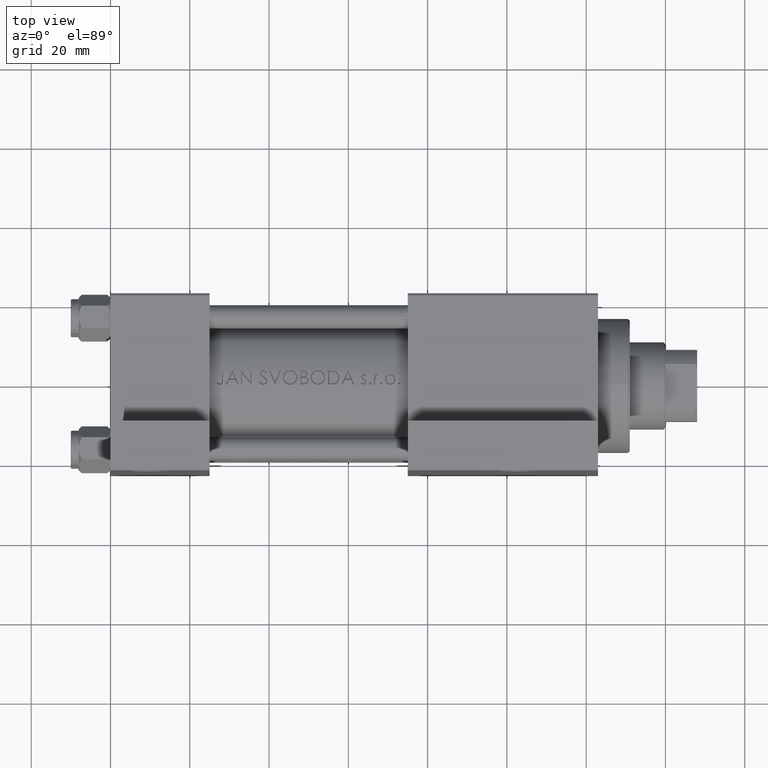
[diagram: clean part render]
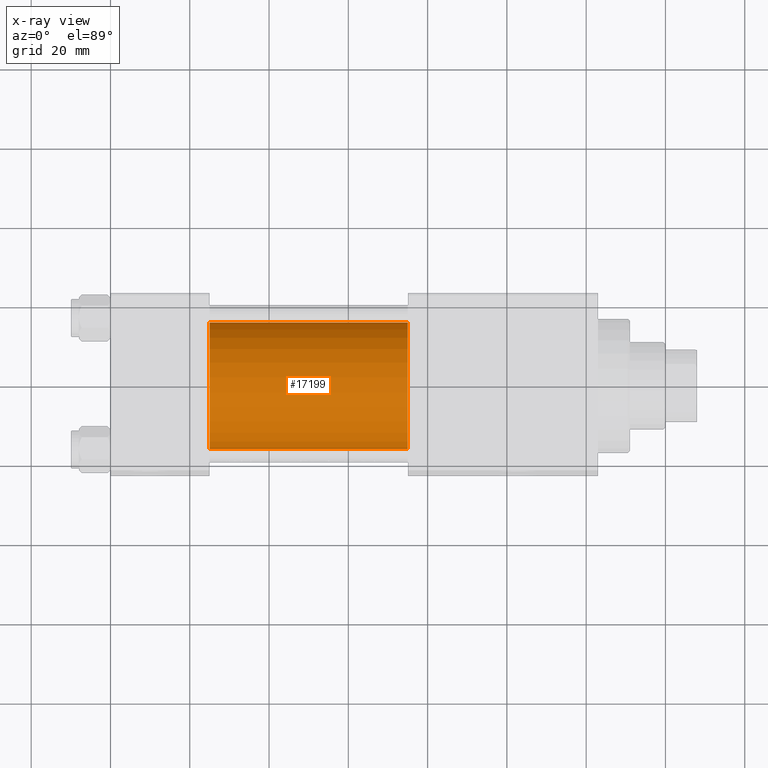
[diagram: x-ray — body ghosted, one internal face saturated and labeled with its STEP entity id]
A machine part, top view, then the same camera in x-ray: the body is ghosted and one INTERNAL B-rep face — a face not visible from any outside direction — is saturated and labeled: STEP entity #17199.
In plain terms, the highlighted cylindrical surface (partial cylindrical patch) has radius 16 mm, axis along (-1, -0, 0).
Its self-contained STEP definition (entity closure, byte-faithful):
#210 = DIRECTION ( 'NONE',  ( -1.000000000000000000, -0.000000000000000000, -0.000000000000000000 ) ) ;
#589 = ORIENTED_EDGE ( 'NONE', *, *, #45517, .F. ) ;
#4809 = CARTESIAN_POINT ( 'NONE',  ( 75.00000000000001421, 1.959434878635765131E-15, -16.49999999999999645 ) ) ;
#5048 = LINE ( 'NONE', #4809, #12072 ) ;
#5967 = EDGE_LOOP ( 'NONE', ( #27809, #5972, #589, #27718 ) ) ;
#5972 = ORIENTED_EDGE ( 'NONE', *, *, #12904, .T. ) ;
#6456 = VERTEX_POINT ( 'NONE', #24908 ) ;
#8930 = FACE_OUTER_BOUND ( 'NONE', #5967, .T. ) ;
#12072 = VECTOR ( 'NONE', #34378, 1000.000000000000000 ) ;
#12904 = EDGE_CURVE ( 'NONE', #42804, #6456, #5048, .T. ) ;
#12975 = AXIS2_PLACEMENT_3D ( 'NONE', #41158, #38259, #19289 ) ;
#13199 = CARTESIAN_POINT ( 'NONE',  ( 25.00000000000000000, 0.000000000000000000, 15.50000000000000355 ) ) ;
#13310 = CARTESIAN_POINT ( 'NONE',  ( 25.00000000000000000, 0.000000000000000000, -0.4999999999999970024 ) ) ;
#13707 = EDGE_CURVE ( 'NONE', #40847, #21050, #33157, .T. ) ;
#16955 = CIRCLE ( 'NONE', #45360, 16.00000000000000000 ) ;
#17199 = ADVANCED_FACE ( 'NONE', ( #8930 ), #41392, .F. ) ;
#19289 = DIRECTION ( 'NONE',  ( 0.000000000000000000, 0.000000000000000000, 1.000000000000000000 ) ) ;
#20527 = DIRECTION ( 'NONE',  ( 1.000000000000000000, 0.000000000000000000, 0.000000000000000000 ) ) ;
#21050 = VERTEX_POINT ( 'NONE', #13199 ) ;
#22554 = CIRCLE ( 'NONE', #24866, 16.00000000000000000 ) ;
#22582 = CARTESIAN_POINT ( 'NONE',  ( 75.00000000000001421, 0.000000000000000000, 15.50000000000000355 ) ) ;
#22944 = DIRECTION ( 'NONE',  ( 1.000000000000000000, 0.000000000000000000, 0.000000000000000000 ) ) ;
#24755 = EDGE_CURVE ( 'NONE', #40847, #42804, #16955, .T. ) ;
#24866 = AXIS2_PLACEMENT_3D ( 'NONE', #13310, #20527, #39976 ) ;
#24908 = CARTESIAN_POINT ( 'NONE',  ( 25.00000000000000000, 1.959434878635765131E-15, -16.49999999999999645 ) ) ;
#27718 = ORIENTED_EDGE ( 'NONE', *, *, #13707, .F. ) ;
#27809 = ORIENTED_EDGE ( 'NONE', *, *, #24755, .T. ) ;
#33157 = LINE ( 'NONE', #36994, #45132 ) ;
#34193 = CARTESIAN_POINT ( 'NONE',  ( 75.00000000000001421, 1.959434878635765131E-15, -16.49999999999999645 ) ) ;
#34378 = DIRECTION ( 'NONE',  ( -1.000000000000000000, -0.000000000000000000, -0.000000000000000000 ) ) ;
#36994 = CARTESIAN_POINT ( 'NONE',  ( 75.00000000000001421, 0.000000000000000000, 15.50000000000000355 ) ) ;
#38090 = DIRECTION ( 'NONE',  ( 0.000000000000000000, 0.000000000000000000, -1.000000000000000000 ) ) ;
#38259 = DIRECTION ( 'NONE',  ( -1.000000000000000000, -0.000000000000000000, -0.000000000000000000 ) ) ;
#39976 = DIRECTION ( 'NONE',  ( 0.000000000000000000, 0.000000000000000000, -1.000000000000000000 ) ) ;
#40847 = VERTEX_POINT ( 'NONE', #22582 ) ;
#41158 = CARTESIAN_POINT ( 'NONE',  ( 75.00000000000001421, 0.000000000000000000, -0.4999999999999970024 ) ) ;
#41392 = CYLINDRICAL_SURFACE ( 'NONE', #12975, 16.00000000000000000 ) ;
#42172 = CARTESIAN_POINT ( 'NONE',  ( 75.00000000000001421, 0.000000000000000000, -0.4999999999999970024 ) ) ;
#42804 = VERTEX_POINT ( 'NONE', #34193 ) ;
#45132 = VECTOR ( 'NONE', #210, 1000.000000000000000 ) ;
#45360 = AXIS2_PLACEMENT_3D ( 'NONE', #42172, #22944, #38090 ) ;
#45517 = EDGE_CURVE ( 'NONE', #21050, #6456, #22554, .T. ) ;